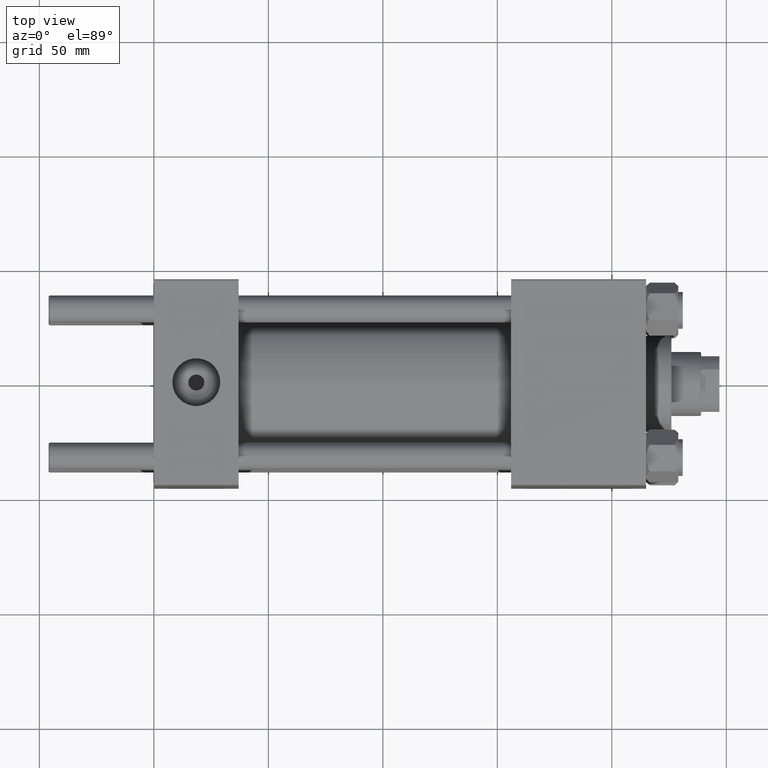
[diagram: clean part render]
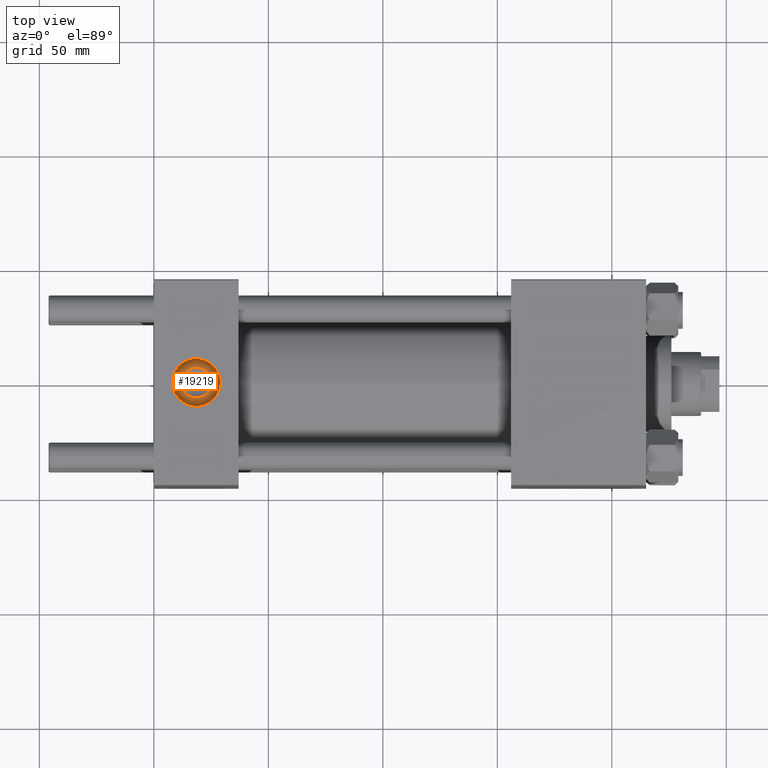
[diagram: same view with one face highlighted and labeled with its STEP entity id]
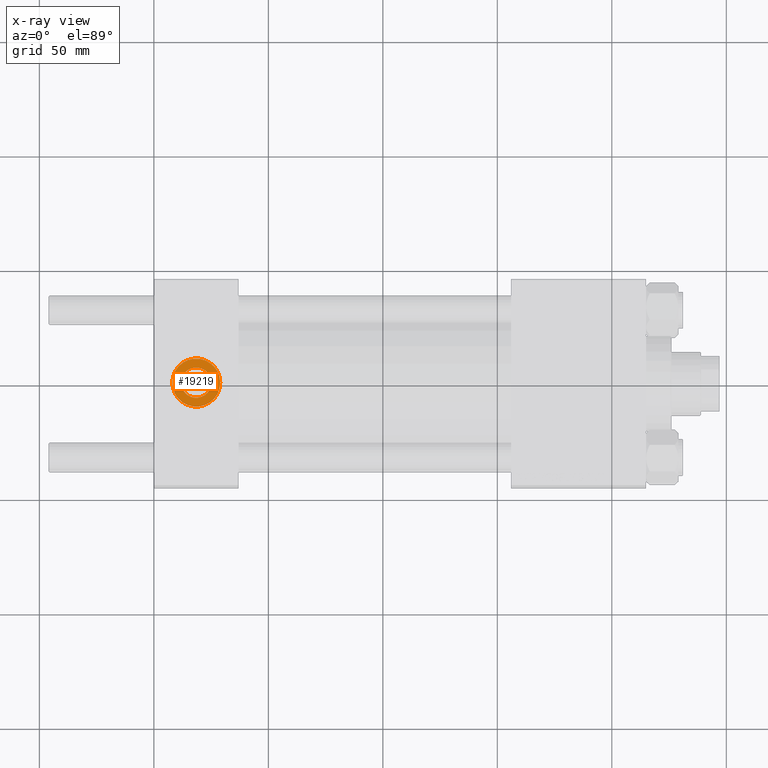
[diagram: x-ray of the same camera — body ghosted, the highlighted face saturated]
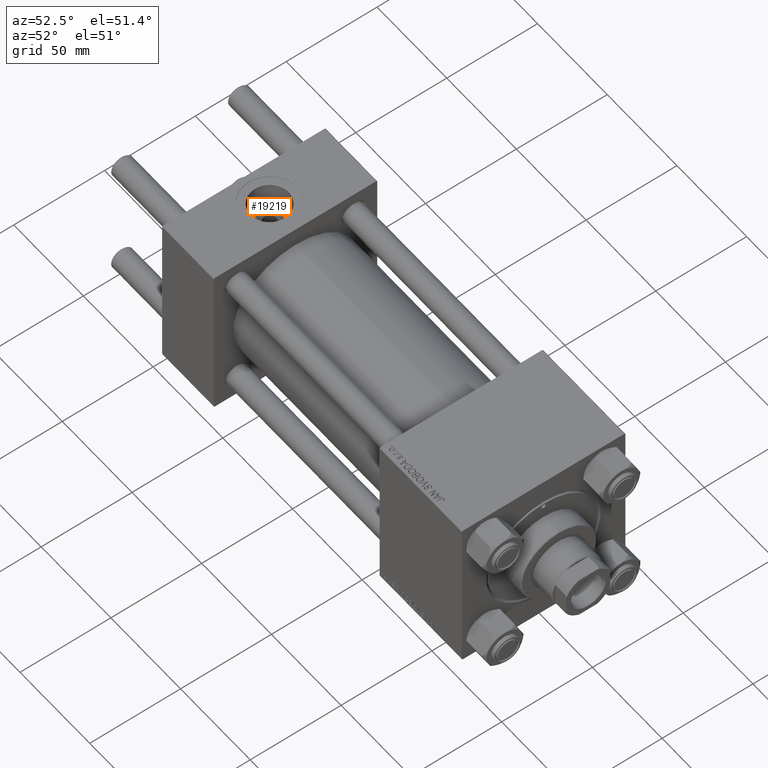
[diagram: same view with one face highlighted and labeled with its STEP entity id]
A machine part, top view. The second image highlights one B-rep face of the part: STEP entity #19219.
The next image is the same camera in x-ray: the body ghosted, the highlighted face saturated — about 0% of this face is hidden behind the body in this view.
A second angle (auxiliary view) of the same face is appended — the face is thin or edge-on in the first view.
In plain terms, the highlighted planar face has unit normal (0, 0, 1).
Its self-contained STEP definition (entity closure, byte-faithful):
#1162 = DIRECTION ( 'NONE',  ( 1.000000000000000000, 0.000000000000000000, 0.000000000000000000 ) ) ;
#2432 = ORIENTED_EDGE ( 'NONE', *, *, #2619, .T. ) ;
#2619 = EDGE_CURVE ( 'NONE', #10229, #8626, #38281, .T. ) ;
#2831 = DIRECTION ( 'NONE',  ( -0.000000000000000000, -0.000000000000000000, -1.000000000000000000 ) ) ;
#3124 = CARTESIAN_POINT ( 'NONE',  ( 18.50000000000000000, -8.673617379884038628E-15, 34.20000000000000995 ) ) ;
#3745 = DIRECTION ( 'NONE',  ( 0.000000000000000000, 0.000000000000000000, 1.000000000000000000 ) ) ;
#4137 = CARTESIAN_POINT ( 'NONE',  ( 8.019999999999999574, -7.390187534377611561E-15, 34.20000000000000995 ) ) ;
#4240 = DIRECTION ( 'NONE',  ( 1.000000000000000000, 0.000000000000000000, -0.000000000000000000 ) ) ;
#4684 = EDGE_LOOP ( 'NONE', ( #2432, #25113 ) ) ;
#7161 = CIRCLE ( 'NONE', #40268, 6.640000000000062741 ) ;
#7599 = DIRECTION ( 'NONE',  ( 1.000000000000000000, 0.000000000000000000, 0.000000000000000000 ) ) ;
#7631 = EDGE_LOOP ( 'NONE', ( #10352, #20754 ) ) ;
#8248 = DIRECTION ( 'NONE',  ( -0.000000000000000000, -0.000000000000000000, -1.000000000000000000 ) ) ;
#8626 = VERTEX_POINT ( 'NONE', #33264 ) ;
#9832 = PLANE ( 'NONE',  #47598 ) ;
#10229 = VERTEX_POINT ( 'NONE', #10365 ) ;
#10352 = ORIENTED_EDGE ( 'NONE', *, *, #31631, .T. ) ;
#10365 = CARTESIAN_POINT ( 'NONE',  ( 25.14000000000006096, -8.673617379884038628E-15, 34.20000000000000995 ) ) ;
#10578 = FACE_BOUND ( 'NONE', #4684, .T. ) ;
#10616 = CARTESIAN_POINT ( 'NONE',  ( 28.98000000000000043, -8.673617379884038628E-15, 34.20000000000000995 ) ) ;
#10701 = DIRECTION ( 'NONE',  ( 0.000000000000000000, 0.000000000000000000, 1.000000000000000000 ) ) ;
#11526 = CIRCLE ( 'NONE', #39802, 10.48000000000000043 ) ;
#12857 = VERTEX_POINT ( 'NONE', #10616 ) ;
#15613 = CARTESIAN_POINT ( 'NONE',  ( 18.50000000000000000, -8.673617379884038628E-15, 34.20000000000000995 ) ) ;
#17363 = CIRCLE ( 'NONE', #30272, 10.48000000000000043 ) ;
#18698 = CARTESIAN_POINT ( 'NONE',  ( 18.50000000000000000, -8.673617379884038628E-15, 34.20000000000000995 ) ) ;
#19219 = ADVANCED_FACE ( 'NONE', ( #10578, #26030 ), #9832, .T. ) ;
#20754 = ORIENTED_EDGE ( 'NONE', *, *, #39764, .T. ) ;
#21980 = EDGE_CURVE ( 'NONE', #8626, #10229, #7161, .T. ) ;
#25113 = ORIENTED_EDGE ( 'NONE', *, *, #21980, .T. ) ;
#25729 = CARTESIAN_POINT ( 'NONE',  ( 18.50000000000000000, -8.673617379884038628E-15, 34.20000000000000995 ) ) ;
#26030 = FACE_OUTER_BOUND ( 'NONE', #7631, .T. ) ;
#29032 = DIRECTION ( 'NONE',  ( 1.000000000000000000, 0.000000000000000000, 0.000000000000000000 ) ) ;
#29932 = DIRECTION ( 'NONE',  ( 1.000000000000000000, 0.000000000000000000, 0.000000000000000000 ) ) ;
#30272 = AXIS2_PLACEMENT_3D ( 'NONE', #25729, #48473, #29032 ) ;
#31631 = EDGE_CURVE ( 'NONE', #12857, #40165, #11526, .T. ) ;
#33264 = CARTESIAN_POINT ( 'NONE',  ( 11.85999999999993726, -7.860451905250187841E-15, 34.20000000000000995 ) ) ;
#38281 = CIRCLE ( 'NONE', #45580, 6.640000000000062741 ) ;
#39764 = EDGE_CURVE ( 'NONE', #40165, #12857, #17363, .T. ) ;
#39802 = AXIS2_PLACEMENT_3D ( 'NONE', #3124, #10701, #29932 ) ;
#40165 = VERTEX_POINT ( 'NONE', #4137 ) ;
#40268 = AXIS2_PLACEMENT_3D ( 'NONE', #15613, #8248, #1162 ) ;
#42507 = CARTESIAN_POINT ( 'NONE',  ( 18.50000000000000000, -8.673617379884038628E-15, 34.20000000000000995 ) ) ;
#45580 = AXIS2_PLACEMENT_3D ( 'NONE', #42507, #2831, #7599 ) ;
#47598 = AXIS2_PLACEMENT_3D ( 'NONE', #18698, #3745, #4240 ) ;
#48473 = DIRECTION ( 'NONE',  ( 0.000000000000000000, 0.000000000000000000, 1.000000000000000000 ) ) ;